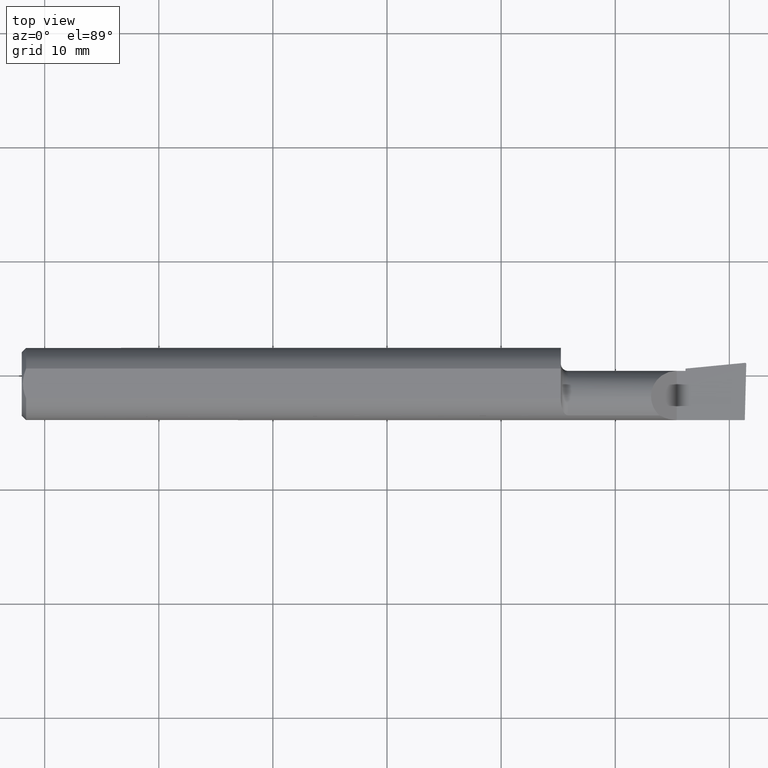
[diagram: clean part render]
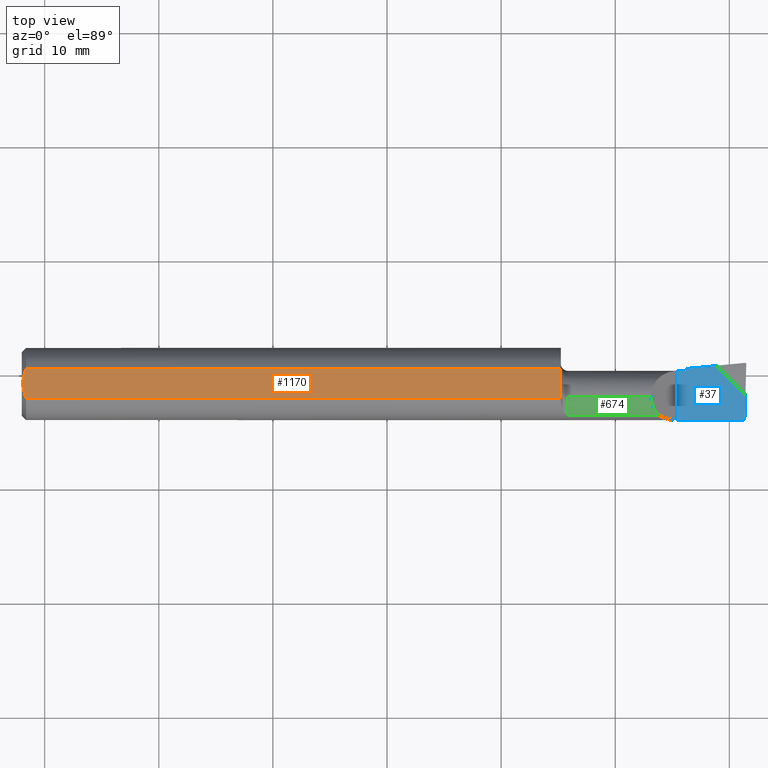
[diagram: same view with three faces highlighted in distinct colors, each labeled with its STEP entity id]
A machine part, top view with three faces highlighted in distinct colors.
Their STEP definitions:

[orange] entity #1170 — the highlighted planar face has unit normal (0, 0, -1).
#9 = ORIENTED_EDGE ( 'NONE', *, *, #332, .T. ) ;
#14 = EDGE_CURVE ( 'NONE', #390, #813, #377, .T. ) ;
#53 = LINE ( 'NONE', #754, #126 ) ;
#79 = CARTESIAN_POINT ( 'NONE',  ( 0.01499999999999915637, 0.05124158467494929065, 0.1138500000000000068 ) ) ;
#88 = ORIENTED_EDGE ( 'NONE', *, *, #442, .F. ) ;
#102 = CARTESIAN_POINT ( 'NONE',  ( 0.01167190377471788269, 0.04313268608482605931, 0.1138500000000000068 ) ) ;
#112 = CARTESIAN_POINT ( 'NONE',  ( 0.003999999999982063043, -1.276290005483319770E-15, 0.1138500000000000068 ) ) ;
#126 = VECTOR ( 'NONE', #1012, 39.37007874015748143 ) ;
#130 = CARTESIAN_POINT ( 'NONE',  ( 2.500000000000000000, -0.05124158467494927677, 0.1138500000000000068 ) ) ;
#249 = B_SPLINE_CURVE_WITH_KNOTS ( 'NONE', 3,
 ( #79, #102, #489, #1100, #496, #1039 ),
 .UNSPECIFIED., .F., .F.,
 ( 4, 2, 4 ),
 ( 0.001209797888329806285, 0.001876628042345594672, 0.002543458196361383060 ),
 .UNSPECIFIED. ) ;
#279 = CARTESIAN_POINT ( 'NONE',  ( 0.003999999999999693037, -0.008848600531297693209, 0.1138500000000000068 ) ) ;
#304 = AXIS2_PLACEMENT_3D ( 'NONE', #873, #361, #1272 ) ;
#332 = EDGE_CURVE ( 'NONE', #390, #502, #249, .T. ) ;
#346 = VECTOR ( 'NONE', #1281, 39.37007874015748143 ) ;
#360 = CARTESIAN_POINT ( 'NONE',  ( 0.008925039223039424666, -0.03485448893270374354, 0.1138499999999999790 ) ) ;
#361 = DIRECTION ( 'NONE',  ( -0.000000000000000000, 0.000000000000000000, -1.000000000000000000 ) ) ;
#365 = CARTESIAN_POINT ( 'NONE',  ( 1.860000000000000098, -0.03800384741902852054, 0.1138500000000000068 ) ) ;
#373 = CARTESIAN_POINT ( 'NONE',  ( 0.003999999999982063043, -1.276290005483319770E-15, 0.1138500000000000068 ) ) ;
#377 = LINE ( 'NONE', #1075, #346 ) ;
#379 = DIRECTION ( 'NONE',  ( 0.000000000000000000, -1.000000000000000000, 0.000000000000000000 ) ) ;
#390 = VERTEX_POINT ( 'NONE', #637 ) ;
#397 = VERTEX_POINT ( 'NONE', #625 ) ;
#442 = EDGE_CURVE ( 'NONE', #601, #1283, #1242, .T. ) ;
#468 = LINE ( 'NONE', #870, #744 ) ;
#489 = CARTESIAN_POINT ( 'NONE',  ( 0.008866562462786909196, 0.03466860267591459488, 0.1138500000000000206 ) ) ;
#496 = CARTESIAN_POINT ( 'NONE',  ( 0.003999999999999200376, 0.008800694614867361418, 0.1138500000000000068 ) ) ;
#497 = EDGE_CURVE ( 'NONE', #813, #946, #736, .T. ) ;
#502 = VERTEX_POINT ( 'NONE', #112 ) ;
#515 = CARTESIAN_POINT ( 'NONE',  ( 1.860000000000000098, -0.05124158467494927677, 0.1138500000000000068 ) ) ;
#523 = ORIENTED_EDGE ( 'NONE', *, *, #1234, .F. ) ;
#535 = DIRECTION ( 'NONE',  ( -1.000000000000000000, -0.000000000000000000, -0.000000000000000000 ) ) ;
#540 = DIRECTION ( 'NONE',  ( 0.000000000000000000, -1.000000000000000000, 0.000000000000000000 ) ) ;
#555 = B_SPLINE_CURVE_WITH_KNOTS ( 'NONE', 3,
 ( #373, #279, #1182, #360, #678, #1292 ),
 .UNSPECIFIED., .F., .F.,
 ( 4, 2, 4 ),
 ( 0.002543458196361383060, 0.003213918189955207883, 0.003884378183549032706 ),
 .UNSPECIFIED. ) ;
#587 = ORIENTED_EDGE ( 'NONE', *, *, #497, .F. ) ;
#601 = VERTEX_POINT ( 'NONE', #515 ) ;
#625 = CARTESIAN_POINT ( 'NONE',  ( 1.860000000000000098, -0.04969615258097146576, 0.1138500000000000068 ) ) ;
#637 = CARTESIAN_POINT ( 'NONE',  ( 0.01499999999999915637, 0.05124158467494929065, 0.1138500000000000068 ) ) ;
#678 = CARTESIAN_POINT ( 'NONE',  ( 0.01167347033176660553, -0.04313650299737418342, 0.1138500000000000068 ) ) ;
#736 = LINE ( 'NONE', #1249, #963 ) ;
#744 = VECTOR ( 'NONE', #379, 39.37007874015748143 ) ;
#754 = CARTESIAN_POINT ( 'NONE',  ( 1.860000000000000098, 0.1000000000000000056, 0.1138500000000000068 ) ) ;
#771 = FACE_OUTER_BOUND ( 'NONE', #1250, .T. ) ;
#813 = VERTEX_POINT ( 'NONE', #948 ) ;
#853 = EDGE_CURVE ( 'NONE', #502, #1283, #555, .T. ) ;
#856 = ORIENTED_EDGE ( 'NONE', *, *, #853, .T. ) ;
#870 = CARTESIAN_POINT ( 'NONE',  ( 1.860000000000000098, 0.1000000000000000056, 0.1138500000000000068 ) ) ;
#873 = CARTESIAN_POINT ( 'NONE',  ( 0.000000000000000000, 0.1000000000000000056, 0.1138500000000000068 ) ) ;
#896 = PLANE ( 'NONE',  #304 ) ;
#917 = VECTOR ( 'NONE', #535, 39.37007874015748143 ) ;
#934 = CARTESIAN_POINT ( 'NONE',  ( 0.01499999999999915637, -0.05124158467494927677, 0.1138500000000000068 ) ) ;
#935 = EDGE_CURVE ( 'NONE', #946, #397, #468, .T. ) ;
#946 = VERTEX_POINT ( 'NONE', #365 ) ;
#948 = CARTESIAN_POINT ( 'NONE',  ( 1.860000000000000098, 0.05124158467494929065, 0.1138500000000000068 ) ) ;
#963 = VECTOR ( 'NONE', #540, 39.37007874015748143 ) ;
#1012 = DIRECTION ( 'NONE',  ( 0.000000000000000000, -1.000000000000000000, 0.000000000000000000 ) ) ;
#1039 = CARTESIAN_POINT ( 'NONE',  ( 0.003999999999982063043, -1.276290005483319770E-15, 0.1138500000000000068 ) ) ;
#1075 = CARTESIAN_POINT ( 'NONE',  ( 2.500000000000000000, 0.05124158467494929065, 0.1138500000000000068 ) ) ;
#1093 = ORIENTED_EDGE ( 'NONE', *, *, #14, .F. ) ;
#1100 = CARTESIAN_POINT ( 'NONE',  ( 0.005030588787081021786, 0.01748826716933454817, 0.1138499999999999790 ) ) ;
#1170 = ADVANCED_FACE ( 'NONE', ( #771 ), #896, .F. ) ;
#1182 = CARTESIAN_POINT ( 'NONE',  ( 0.005080301127455556266, -0.01778481300359936734, 0.1138500000000000206 ) ) ;
#1234 = EDGE_CURVE ( 'NONE', #397, #601, #53, .T. ) ;
#1242 = LINE ( 'NONE', #130, #917 ) ;
#1249 = CARTESIAN_POINT ( 'NONE',  ( 1.860000000000000098, 0.1000000000000000056, 0.1138500000000000068 ) ) ;
#1250 = EDGE_LOOP ( 'NONE', ( #587, #1093, #9, #856, #88, #523, #1255 ) ) ;
#1255 = ORIENTED_EDGE ( 'NONE', *, *, #935, .F. ) ;
#1272 = DIRECTION ( 'NONE',  ( -1.000000000000000000, 0.000000000000000000, 0.000000000000000000 ) ) ;
#1281 = DIRECTION ( 'NONE',  ( 1.000000000000000000, 0.000000000000000000, 0.000000000000000000 ) ) ;
#1283 = VERTEX_POINT ( 'NONE', #934 ) ;
#1292 = CARTESIAN_POINT ( 'NONE',  ( 0.01499999999999915637, -0.05124158467494927677, 0.1138500000000000068 ) ) ;

[blue] entity #37 — the highlighted planar face has unit normal (0, 0, -1).
#24 = LINE ( 'NONE', #431, #430 ) ;
#37 = ADVANCED_FACE ( 'NONE', ( #566 ), #471, .F. ) ;
#52 = EDGE_CURVE ( 'NONE', #278, #1153, #777, .T. ) ;
#58 = CARTESIAN_POINT ( 'NONE',  ( 2.269536573633624155, 0.05095889603083809255, -3.414809992080329023E-17 ) ) ;
#59 = VECTOR ( 'NONE', #1313, 39.37007874015748143 ) ;
#110 = CARTESIAN_POINT ( 'NONE',  ( 1.860000000000000098, 0.04514999999999999569, -3.414809992080329023E-17 ) ) ;
#179 = CARTESIAN_POINT ( 'NONE',  ( 2.290000000000000036, 0.1499999999999999944, -3.414809992080329023E-17 ) ) ;
#199 = EDGE_CURVE ( 'NONE', #278, #1311, #586, .T. ) ;
#207 = CARTESIAN_POINT ( 'NONE',  ( 2.397014310919834301, 0.06323360602050331902, 0.000000000000000000 ) ) ;
#224 = DIRECTION ( 'NONE',  ( -1.000000000000000000, -0.000000000000000000, -0.000000000000000000 ) ) ;
#278 = VERTEX_POINT ( 'NONE', #207 ) ;
#314 = DIRECTION ( 'NONE',  ( 0.7071067811865524577, -0.7071067811865425767, -0.000000000000000000 ) ) ;
#385 = CARTESIAN_POINT ( 'NONE',  ( 2.500000000000000444, -0.03975208305966135280, 0.000000000000000000 ) ) ;
#426 = CARTESIAN_POINT ( 'NONE',  ( 2.497097916940338891, -0.03684999999999957060, 0.000000000000000000 ) ) ;
#430 = VECTOR ( 'NONE', #1277, 39.37007874015748143 ) ;
#431 = CARTESIAN_POINT ( 'NONE',  ( 2.260000000000000231, 0.1499999999999999944, -3.414809992080329023E-17 ) ) ;
#459 = CARTESIAN_POINT ( 'NONE',  ( 2.260000000000000231, 0.1499999999999999944, -3.414809992080329023E-17 ) ) ;
#471 = PLANE ( 'NONE',  #1072 ) ;
#504 = VERTEX_POINT ( 'NONE', #956 ) ;
#542 = ORIENTED_EDGE ( 'NONE', *, *, #623, .F. ) ;
#556 = CARTESIAN_POINT ( 'NONE',  ( 2.494776250492609648, -0.1248499999999999610, -1.707404996040164512E-17 ) ) ;
#563 = EDGE_LOOP ( 'NONE', ( #1241, #974, #1315, #677, #925, #818, #542 ) ) ;
#566 = FACE_OUTER_BOUND ( 'NONE', #563, .T. ) ;
#578 = DIRECTION ( 'NONE',  ( 0.000000000000000000, 1.000000000000000000, 0.000000000000000000 ) ) ;
#586 = LINE ( 'NONE', #385, #676 ) ;
#592 = CARTESIAN_POINT ( 'NONE',  ( 2.290000000000000036, 0.04514999999999999569, -3.414809992080329023E-17 ) ) ;
#623 = EDGE_CURVE ( 'NONE', #1198, #504, #718, .T. ) ;
#636 = EDGE_CURVE ( 'NONE', #737, #1228, #697, .T. ) ;
#655 = CARTESIAN_POINT ( 'NONE',  ( 2.290000000000000036, 0.05292929987851683477, -3.414809992080329023E-17 ) ) ;
#676 = VECTOR ( 'NONE', #314, 39.37007874015748143 ) ;
#677 = ORIENTED_EDGE ( 'NONE', *, *, #945, .F. ) ;
#697 = LINE ( 'NONE', #110, #59 ) ;
#718 = LINE ( 'NONE', #1137, #781 ) ;
#737 = VERTEX_POINT ( 'NONE', #850 ) ;
#739 = VECTOR ( 'NONE', #578, 39.37007874015748143 ) ;
#740 = LINE ( 'NONE', #1155, #1219 ) ;
#777 = LINE ( 'NONE', #58, #1286 ) ;
#781 = VECTOR ( 'NONE', #224, 39.37007874015748143 ) ;
#818 = ORIENTED_EDGE ( 'NONE', *, *, #1097, .F. ) ;
#842 = EDGE_CURVE ( 'NONE', #1198, #1311, #740, .T. ) ;
#850 = CARTESIAN_POINT ( 'NONE',  ( 2.260000000000000231, 0.04514999999999997488, -3.414809992080329023E-17 ) ) ;
#925 = ORIENTED_EDGE ( 'NONE', *, *, #636, .F. ) ;
#945 = EDGE_CURVE ( 'NONE', #1228, #1153, #1195, .T. ) ;
#956 = CARTESIAN_POINT ( 'NONE',  ( 2.260000000000000231, -0.1248499999999999610, -3.414809992080329023E-17 ) ) ;
#961 = DIRECTION ( 'NONE',  ( 0.02637339639455550319, 0.9996521614854917415, 0.000000000000000000 ) ) ;
#974 = ORIENTED_EDGE ( 'NONE', *, *, #199, .F. ) ;
#1072 = AXIS2_PLACEMENT_3D ( 'NONE', #459, #1192, #1289 ) ;
#1097 = EDGE_CURVE ( 'NONE', #504, #737, #24, .T. ) ;
#1137 = CARTESIAN_POINT ( 'NONE',  ( 2.500000000000000000, -0.1248500000000000026, -3.414809992080329023E-17 ) ) ;
#1153 = VERTEX_POINT ( 'NONE', #655 ) ;
#1155 = CARTESIAN_POINT ( 'NONE',  ( 2.501859157066409711, 0.1436191330677595301, -3.414809992080329023E-17 ) ) ;
#1192 = DIRECTION ( 'NONE',  ( -0.000000000000000000, 0.000000000000000000, -1.000000000000000000 ) ) ;
#1195 = LINE ( 'NONE', #179, #739 ) ;
#1198 = VERTEX_POINT ( 'NONE', #556 ) ;
#1219 = VECTOR ( 'NONE', #961, 39.37007874015748143 ) ;
#1228 = VERTEX_POINT ( 'NONE', #592 ) ;
#1241 = ORIENTED_EDGE ( 'NONE', *, *, #842, .T. ) ;
#1277 = DIRECTION ( 'NONE',  ( -0.000000000000000000, 1.000000000000000000, -0.000000000000000000 ) ) ;
#1286 = VECTOR ( 'NONE', #1295, 39.37007874015748854 ) ;
#1289 = DIRECTION ( 'NONE',  ( -1.000000000000000000, 0.000000000000000000, 0.000000000000000000 ) ) ;
#1295 = DIRECTION ( 'NONE',  ( -0.9953961983671786307, -0.09584575252022480008, 0.000000000000000000 ) ) ;
#1311 = VERTEX_POINT ( 'NONE', #426 ) ;
#1313 = DIRECTION ( 'NONE',  ( 1.000000000000000000, 0.000000000000000000, 0.000000000000000000 ) ) ;
#1315 = ORIENTED_EDGE ( 'NONE', *, *, #52, .T. ) ;

[green] entity #674 — the highlighted cylindrical surface (edge-blend (fillet) strip) has radius 2.2606 mm, axis along (-1, -0, -0).
#42 = ORIENTED_EDGE ( 'NONE', *, *, #714, .T. ) ;
#49 = VERTEX_POINT ( 'NONE', #169 ) ;
#97 = CARTESIAN_POINT ( 'NONE',  ( 2.075000000000000178, -0.1093425883694413014, 0.06026376082415467461 ) ) ;
#168 = AXIS2_PLACEMENT_3D ( 'NONE', #443, #1149, #255 ) ;
#169 = CARTESIAN_POINT ( 'NONE',  ( 1.885000000000000009, -0.04841410157637246470, 0.08888289473684209130 ) ) ;
#196 =( BOUNDED_CURVE ( )  B_SPLINE_CURVE ( 3, ( #734, #233, #640, #1258 ),
 .UNSPECIFIED., .F., .T. ) 
 B_SPLINE_CURVE_WITH_KNOTS ( ( 4, 4 ),
 ( 0.000000000000000000, 0.8269532615970597300 ),
 .UNSPECIFIED. ) 
 CURVE ( )  GEOMETRIC_REPRESENTATION_ITEM ( )  RATIONAL_B_SPLINE_CURVE ( ( 1.000000000000000000, 0.9438196436970136549, 0.9438196436970136549, 1.000000000000000000 ) ) 
 REPRESENTATION_ITEM ( '' )  );
#233 = CARTESIAN_POINT ( 'NONE',  ( 2.171349999999999891, -0.06910891545235434141, 0.08900000000000000966 ) ) ;
#236 = AXIS2_PLACEMENT_3D ( 'NONE', #712, #1025, #417 ) ;
#255 = DIRECTION ( 'NONE',  ( 0.000000000000000000, 0.000000000000000000, -1.000000000000000000 ) ) ;
#318 = FACE_OUTER_BOUND ( 'NONE', #1269, .T. ) ;
#325 = DIRECTION ( 'NONE',  ( -1.000000000000000000, -0.000000000000000000, -0.000000000000000000 ) ) ;
#412 = LINE ( 'NONE', #97, #717 ) ;
#417 = DIRECTION ( 'NONE',  ( 0.000000000000000000, 0.000000000000000000, 1.000000000000000000 ) ) ;
#443 = CARTESIAN_POINT ( 'NONE',  ( 1.885000000000000009, -0.04385000000000000009, 0.000000000000000000 ) ) ;
#505 = CIRCLE ( 'NONE', #168, 0.08899999999999999578 ) ;
#554 = EDGE_CURVE ( 'NONE', #1217, #1308, #412, .T. ) ;
#594 = ORIENTED_EDGE ( 'NONE', *, *, #610, .T. ) ;
#605 = CARTESIAN_POINT ( 'NONE',  ( 2.171349999999999891, -0.04385000000000000009, 0.08899999999999999578 ) ) ;
#607 = ORIENTED_EDGE ( 'NONE', *, *, #554, .T. ) ;
#610 = EDGE_CURVE ( 'NONE', #992, #1125, #911, .T. ) ;
#640 = CARTESIAN_POINT ( 'NONE',  ( 2.181498916115400810, -0.09223924859979829027, 0.07885108388459921569 ) ) ;
#659 = CARTESIAN_POINT ( 'NONE',  ( 1.884999549995949986, -0.04385000000000000009, 0.08899999999999999578 ) ) ;
#671 = CARTESIAN_POINT ( 'NONE',  ( 1.885000000000000009, -0.04841410157637246470, 0.08888289473684209130 ) ) ;
#674 = ADVANCED_FACE ( 'NONE', ( #318 ), #1320, .T. ) ;
#712 = CARTESIAN_POINT ( 'NONE',  ( 1.860000000000000098, -0.04385000000000000009, 0.000000000000000000 ) ) ;
#714 = EDGE_CURVE ( 'NONE', #49, #1217, #505, .T. ) ;
#717 = VECTOR ( 'NONE', #814, 39.37007874015748143 ) ;
#734 = CARTESIAN_POINT ( 'NONE',  ( 2.171349999999999891, -0.04385000000000000009, 0.08899999999999999578 ) ) ;
#778 = ORIENTED_EDGE ( 'NONE', *, *, #797, .F. ) ;
#779 = CARTESIAN_POINT ( 'NONE',  ( 1.884999549995949986, -0.04537136719212415265, 0.08899999999999999578 ) ) ;
#797 = EDGE_CURVE ( 'NONE', #992, #1308, #196, .T. ) ;
#807 = VECTOR ( 'NONE', #325, 39.37007874015748143 ) ;
#814 = DIRECTION ( 'NONE',  ( 1.000000000000000000, 0.000000000000000000, 0.000000000000000000 ) ) ;
#829 = CARTESIAN_POINT ( 'NONE',  ( 2.200086239175845559, -0.1093425883694413153, 0.06026376082415463298 ) ) ;
#863 = CARTESIAN_POINT ( 'NONE',  ( 1.884999549995949986, -0.04385000000000000009, 0.08899999999999999578 ) ) ;
#883 = EDGE_CURVE ( 'NONE', #1125, #49, #1046, .T. ) ;
#911 = LINE ( 'NONE', #927, #807 ) ;
#927 = CARTESIAN_POINT ( 'NONE',  ( 1.860000000000000098, -0.04385000000000000009, 0.08899999999999999578 ) ) ;
#992 = VERTEX_POINT ( 'NONE', #605 ) ;
#1003 = CARTESIAN_POINT ( 'NONE',  ( 1.885000000000000009, -0.1093425883694413014, 0.06026376082415467461 ) ) ;
#1025 = DIRECTION ( 'NONE',  ( -1.000000000000000000, -0.000000000000000000, -0.000000000000000000 ) ) ;
#1046 = B_SPLINE_CURVE_WITH_KNOTS ( 'NONE', 3,
 ( #659, #779, #1094, #671 ),
 .UNSPECIFIED., .F., .F.,
 ( 4, 4 ),
 ( 0.0001159281800398605754, 0.0002318563600797211507 ),
 .UNSPECIFIED. ) ;
#1094 = CARTESIAN_POINT ( 'NONE',  ( 1.885000000000000009, -0.04689273438424830520, 0.08896101634190878293 ) ) ;
#1101 = ORIENTED_EDGE ( 'NONE', *, *, #883, .T. ) ;
#1125 = VERTEX_POINT ( 'NONE', #863 ) ;
#1149 = DIRECTION ( 'NONE',  ( 1.000000000000000000, 0.000000000000000000, 0.000000000000000000 ) ) ;
#1217 = VERTEX_POINT ( 'NONE', #1003 ) ;
#1258 = CARTESIAN_POINT ( 'NONE',  ( 2.200086239175845559, -0.1093425883694413153, 0.06026376082415463298 ) ) ;
#1269 = EDGE_LOOP ( 'NONE', ( #778, #594, #1101, #42, #607 ) ) ;
#1308 = VERTEX_POINT ( 'NONE', #829 ) ;
#1320 = CYLINDRICAL_SURFACE ( 'NONE', #236, 0.08899999999999999578 ) ;